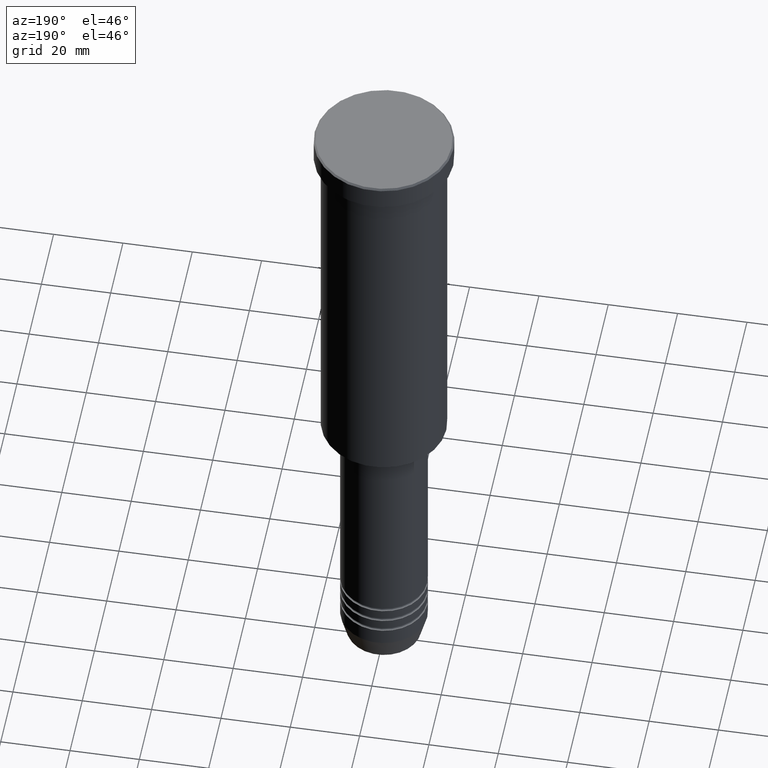
[diagram: clean part render]
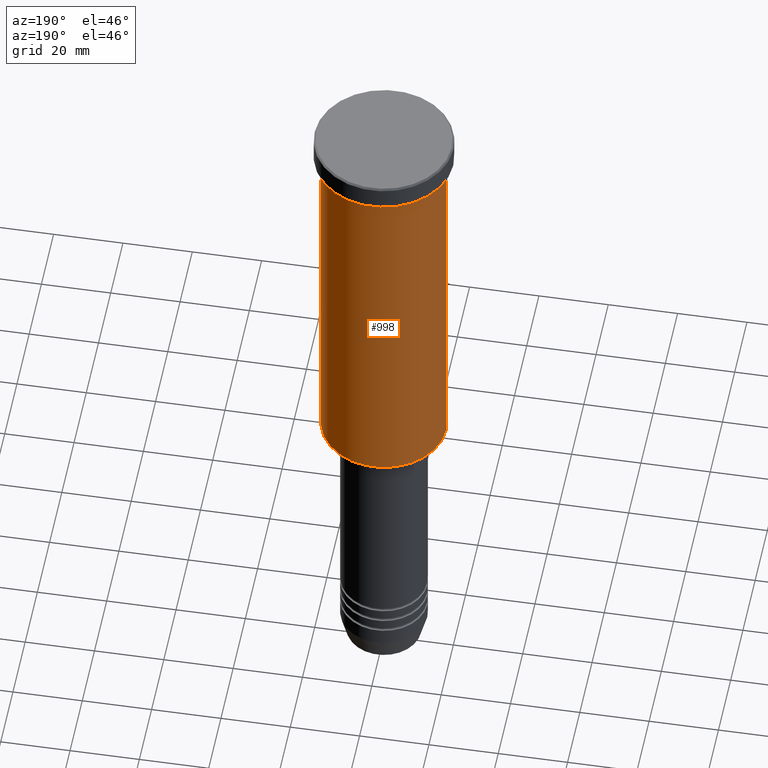
[diagram: same view with one face highlighted and labeled with its STEP entity id]
A machine part, auxiliary view. The second image highlights one B-rep face of the part: STEP entity #998.
In plain terms, the highlighted cylindrical surface (partial cylindrical patch) has radius 18 mm, axis along (-0, -0, 1).
Its self-contained STEP definition (entity closure, byte-faithful):
#22 = DIRECTION ( 'NONE',  ( -0.000000000000000000, -0.000000000000000000, 1.000000000000000000 ) ) ;
#79 = CARTESIAN_POINT ( 'NONE',  ( 18.00000000000000000, 0.000000000000000000, -115.4999999999999432 ) ) ;
#95 = AXIS2_PLACEMENT_3D ( 'NONE', #596, #22, #1013 ) ;
#97 = VECTOR ( 'NONE', #951, 1000.000000000000000 ) ;
#152 = EDGE_CURVE ( 'NONE', #1116, #1038, #600, .T. ) ;
#169 = CARTESIAN_POINT ( 'NONE',  ( 18.00000000000000000, 0.000000000000000000, -7.999999999999996447 ) ) ;
#244 = DIRECTION ( 'NONE',  ( -0.000000000000000000, -0.000000000000000000, 1.000000000000000000 ) ) ;
#281 = EDGE_CURVE ( 'NONE', #1038, #1106, #1042, .T. ) ;
#294 = DIRECTION ( 'NONE',  ( 1.000000000000000000, 0.000000000000000000, 0.000000000000000000 ) ) ;
#336 = CIRCLE ( 'NONE', #501, 18.00000000000000000 ) ;
#363 = EDGE_CURVE ( 'NONE', #670, #1106, #336, .T. ) ;
#382 = CARTESIAN_POINT ( 'NONE',  ( 0.000000000000000000, 0.000000000000000000, -7.999999999999996447 ) ) ;
#420 = CYLINDRICAL_SURFACE ( 'NONE', #915, 18.00000000000000000 ) ;
#423 = CARTESIAN_POINT ( 'NONE',  ( -18.00000000000000000, 2.204364238465235428E-15, -7.999999999999996447 ) ) ;
#453 = CARTESIAN_POINT ( 'NONE',  ( -18.00000000000000000, 2.204364238465235428E-15, 0.000000000000000000 ) ) ;
#501 = AXIS2_PLACEMENT_3D ( 'NONE', #382, #1034, #294 ) ;
#502 = FACE_OUTER_BOUND ( 'NONE', #655, .T. ) ;
#510 = EDGE_CURVE ( 'NONE', #1116, #670, #565, .T. ) ;
#565 = LINE ( 'NONE', #940, #97 ) ;
#596 = CARTESIAN_POINT ( 'NONE',  ( 0.000000000000000000, 0.000000000000000000, -115.4999999999999432 ) ) ;
#600 = CIRCLE ( 'NONE', #95, 18.00000000000000000 ) ;
#655 = EDGE_LOOP ( 'NONE', ( #1085, #1165, #680, #958 ) ) ;
#670 = VERTEX_POINT ( 'NONE', #169 ) ;
#680 = ORIENTED_EDGE ( 'NONE', *, *, #363, .F. ) ;
#871 = DIRECTION ( 'NONE',  ( 1.000000000000000000, 0.000000000000000000, 0.000000000000000000 ) ) ;
#915 = AXIS2_PLACEMENT_3D ( 'NONE', #1166, #244, #871 ) ;
#918 = DIRECTION ( 'NONE',  ( -0.000000000000000000, -0.000000000000000000, 1.000000000000000000 ) ) ;
#940 = CARTESIAN_POINT ( 'NONE',  ( 18.00000000000000000, 0.000000000000000000, 0.000000000000000000 ) ) ;
#951 = DIRECTION ( 'NONE',  ( -0.000000000000000000, -0.000000000000000000, 1.000000000000000000 ) ) ;
#958 = ORIENTED_EDGE ( 'NONE', *, *, #510, .F. ) ;
#998 = ADVANCED_FACE ( 'NONE', ( #502 ), #420, .T. ) ;
#1013 = DIRECTION ( 'NONE',  ( -1.000000000000000000, 0.000000000000000000, 0.000000000000000000 ) ) ;
#1034 = DIRECTION ( 'NONE',  ( -0.000000000000000000, -0.000000000000000000, 1.000000000000000000 ) ) ;
#1038 = VERTEX_POINT ( 'NONE', #1061 ) ;
#1042 = LINE ( 'NONE', #453, #1111 ) ;
#1061 = CARTESIAN_POINT ( 'NONE',  ( -18.00000000000000000, 2.204364238465235428E-15, -115.4999999999999432 ) ) ;
#1085 = ORIENTED_EDGE ( 'NONE', *, *, #152, .T. ) ;
#1106 = VERTEX_POINT ( 'NONE', #423 ) ;
#1111 = VECTOR ( 'NONE', #918, 1000.000000000000000 ) ;
#1116 = VERTEX_POINT ( 'NONE', #79 ) ;
#1165 = ORIENTED_EDGE ( 'NONE', *, *, #281, .T. ) ;
#1166 = CARTESIAN_POINT ( 'NONE',  ( 0.000000000000000000, 0.000000000000000000, 0.000000000000000000 ) ) ;